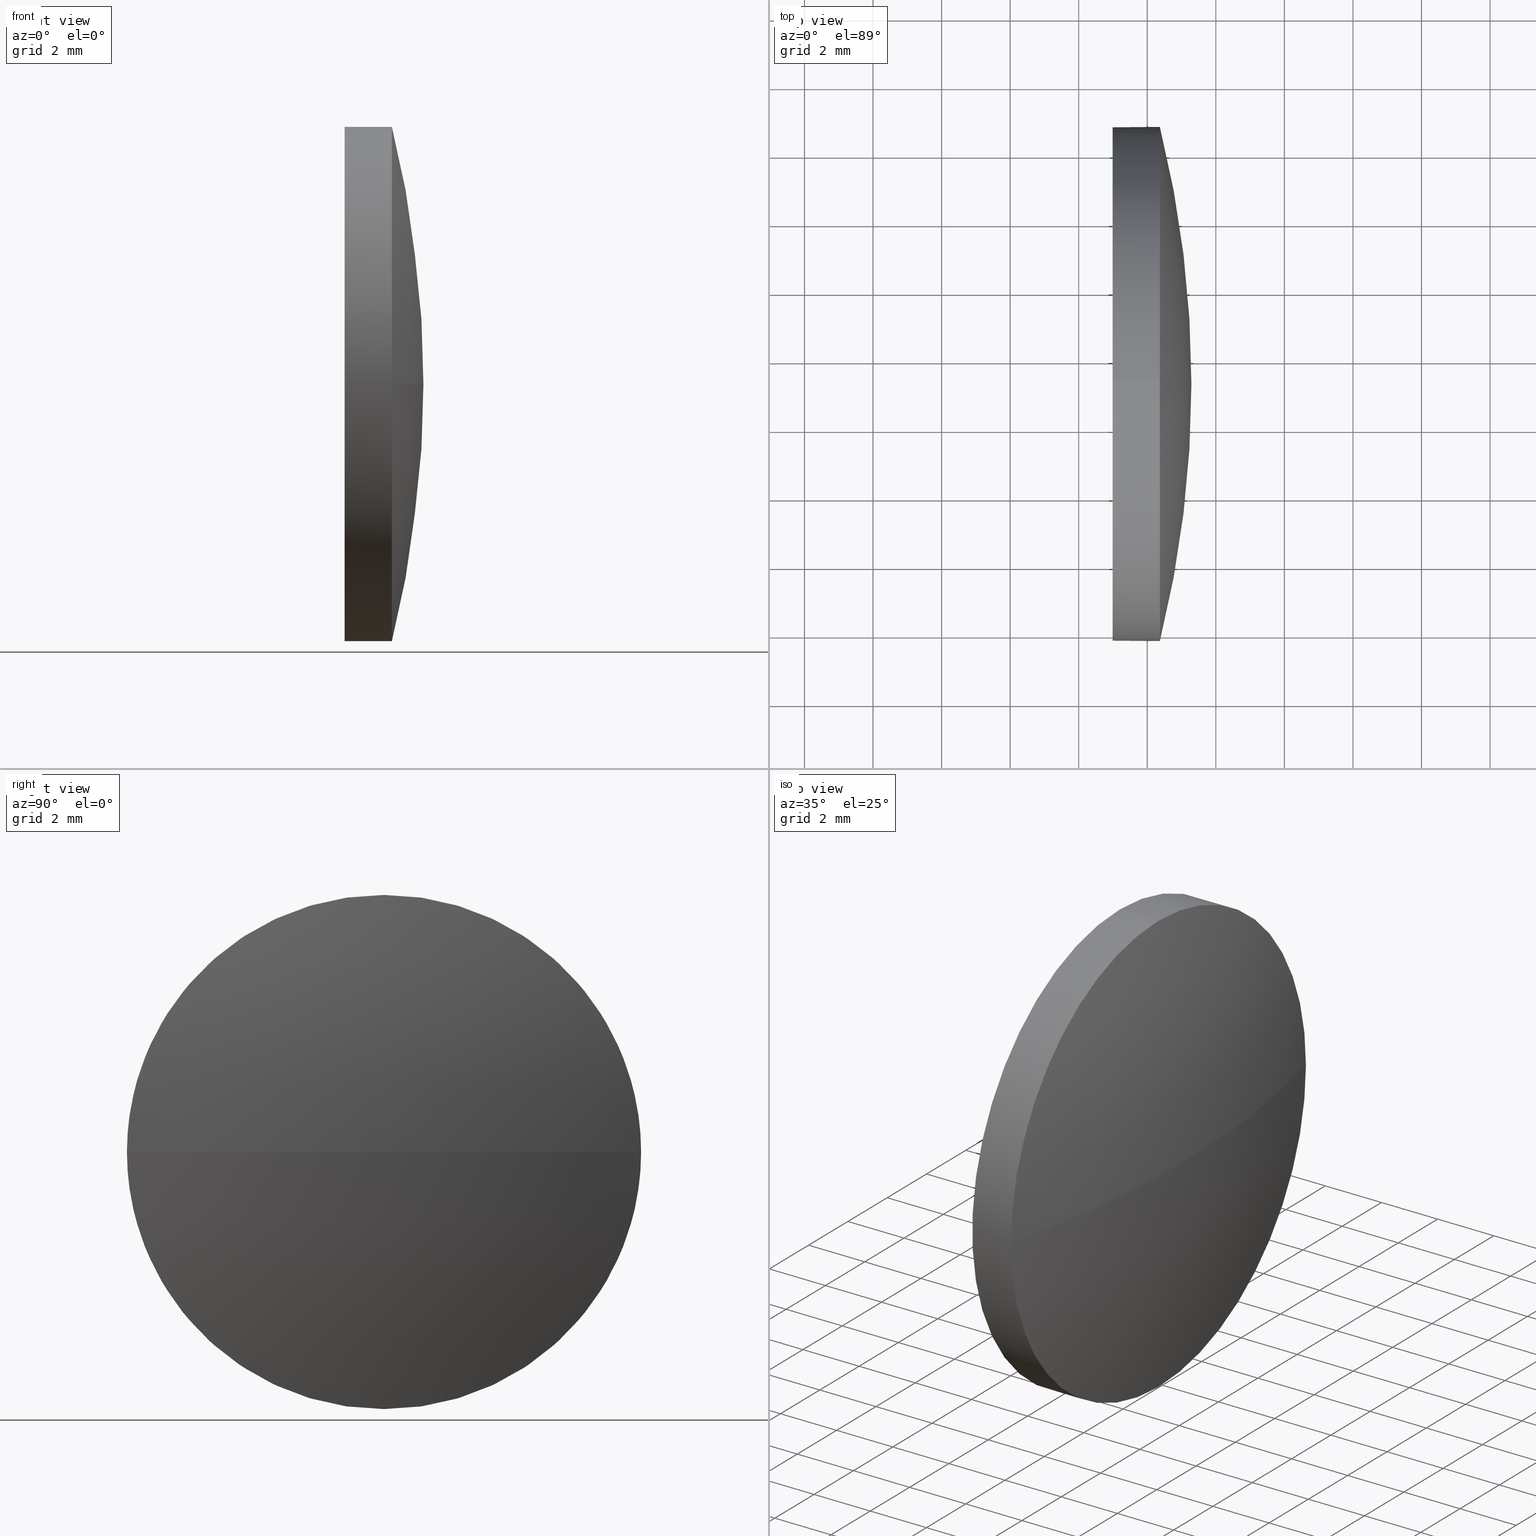
[diagram: canonical four-view strip — front | top / right | iso, engineering-drawing reading convention]
A machine part, canonical four-view strip (front | top / right | iso — engineering-drawing reading convention). The complete STEP part file that produces these views, byte-faithful:
ISO-10303-21;
HEADER;
FILE_DESCRIPTION (( 'STEP AP214' ),
    '1' );
FILE_NAME ('100110.STEP',
    '2019-05-14T01:37:15',
    ( '' ),
    ( '' ),
    'SwSTEP 2.0',
    'SolidWorks 2016',
    '' );
FILE_SCHEMA (( 'AUTOMOTIVE_DESIGN' ));
ENDSEC;

DATA;
#1 = EDGE_LOOP ( 'NONE', ( #184, #165, #14, #60, #132 ) ) ;
#2 = CARTESIAN_POINT ( 'NONE',  ( 576.6614697419953500, 147.2765599219413800, 0.0000000000000000000 ) ) ;
#3 = CARTESIAN_POINT ( 'NONE',  ( 580.3681567995189400, 147.2765599219413800, 0.0000000000000000000 ) ) ;
#4 = MECHANICAL_DESIGN_GEOMETRIC_PRESENTATION_REPRESENTATION (  '', ( #52 ), #121 ) ;
#5 = DIRECTION ( 'NONE',  ( 1.000000000000000000, 0.0000000000000000000, 0.0000000000000000000 ) ) ;
#6 = LINE ( 'NONE', #182, #33 ) ;
#7 = EDGE_CURVE ( 'NONE', #23, #117, #101, .T. ) ;
#8 = CIRCLE ( 'NONE', #68, 31.03065217391332100 ) ;
#9 = AXIS2_PLACEMENT_3D ( 'NONE', #72, #146, #147 ) ;
#10 =( NAMED_UNIT ( * ) PLANE_ANGLE_UNIT ( ) SI_UNIT ( $, .RADIAN. ) );
#11 = UNCERTAINTY_MEASURE_WITH_UNIT (LENGTH_MEASURE( 1.000000000000000100E-005 ), #105, 'distance_accuracy_value', 'NONE');
#12 = AXIS2_PLACEMENT_3D ( 'NONE', #2, #20, #53 ) ;
#13 = EDGE_LOOP ( 'NONE', ( #62, #134 ) ) ;
#14 = ORIENTED_EDGE ( 'NONE', *, *, #97, .T. ) ;
#15 = EDGE_CURVE ( 'NONE', #160, #120, #89, .T. ) ;
#16 = DIRECTION ( 'NONE',  ( -1.000000000000000000, -0.0000000000000000000, -0.0000000000000000000 ) ) ;
#17 = PRESENTATION_LAYER_ASSIGNMENT (  '', '', ( #52 ) ) ;
#18 = COLOUR_RGB ( '',1.000000000000000000, 1.000000000000000000, 1.000000000000000000 ) ;
#19 = EDGE_LOOP ( 'NONE', ( #32, #93, #127, #66 ) ) ;
#20 = DIRECTION ( 'NONE',  ( -1.000000000000000000, -0.0000000000000000000, -0.0000000000000000000 ) ) ;
#21 = CARTESIAN_POINT ( 'NONE',  ( 578.9881567995189500, 147.2765599219413800, -7.500000000000007100 ) ) ;
#22 = DIRECTION ( 'NONE',  ( 0.0000000000000000000, 0.0000000000000000000, 1.000000000000000000 ) ) ;
#23 = VERTEX_POINT ( 'NONE', #64 ) ;
#24 = CIRCLE ( 'NONE', #9, 31.03065217391327800 ) ;
#25 = ORIENTED_EDGE ( 'NONE', *, *, #26, .T. ) ;
#26 = EDGE_CURVE ( 'NONE', #183, #160, #75, .T. ) ;
#27 = SURFACE_STYLE_USAGE ( .BOTH. , #98 ) ;
#28 = CIRCLE ( 'NONE', #185, 7.500000000000007100 ) ;
#29 = PRODUCT_CONTEXT ( 'NONE', #99, 'mechanical' ) ;
#30 = PRESENTATION_LAYER_ASSIGNMENT (  '', '', ( #170 ) ) ;
#31 = PRODUCT_DEFINITION ( 'δ֪', '', #42, #162 ) ;
#32 = ORIENTED_EDGE ( 'NONE', *, *, #112, .F. ) ;
#33 = VECTOR ( 'NONE', #69, 1000.000000000000000 ) ;
#34 = CARTESIAN_POINT ( 'NONE',  ( 581.2881567995189000, 147.2765599219415500, 0.0000000000000000000 ) ) ;
#35 = SHAPE_DEFINITION_REPRESENTATION ( #77, #186 ) ;
#36 = CARTESIAN_POINT ( 'NONE',  ( 580.3681567995189400, 147.2765599219413800, 7.500000000000007100 ) ) ;
#37 = ADVANCED_FACE ( 'NONE', ( #51 ), #65, .T. ) ;
#38 = CYLINDRICAL_SURFACE ( 'NONE', #55, 7.500000000000007100 ) ;
#39 = CARTESIAN_POINT ( 'NONE',  ( 580.3681567995189400, 154.7765599219414700, 9.184850993605047400E-016 ) ) ;
#40 = CARTESIAN_POINT ( 'NONE',  ( 580.3681567995189400, 147.2765599219413800, -7.500000000000007100 ) ) ;
#41 = DIRECTION ( 'NONE',  ( 0.0000000000000000000, 0.0000000000000000000, 1.000000000000000000 ) ) ;
#42 = PRODUCT_DEFINITION_FORMATION_WITH_SPECIFIED_SOURCE ( '�κ�', '', #92, .NOT_KNOWN. ) ;
#43 = EDGE_CURVE ( 'NONE', #120, #144, #78, .T. ) ;
#44 = LINE ( 'NONE', #95, #126 ) ;
#45 = AXIS2_PLACEMENT_3D ( 'NONE', #48, #67, #46 ) ;
#46 = DIRECTION ( 'NONE',  ( 0.0000000000000000000, 0.0000000000000000000, 1.000000000000000000 ) ) ;
#47 = AXIS2_PLACEMENT_3D ( 'NONE', #181, #5, #141 ) ;
#48 = CARTESIAN_POINT ( 'NONE',  ( 580.3681567995189400, 147.2765599219413800, 0.0000000000000000000 ) ) ;
#49 = ORIENTED_EDGE ( 'NONE', *, *, #112, .T. ) ;
#50 = DIRECTION ( 'NONE',  ( 0.0000000000000000000, 0.0000000000000000000, 1.000000000000000000 ) ) ;
#51 = FACE_OUTER_BOUND ( 'NONE', #96, .T. ) ;
#52 = STYLED_ITEM ( 'NONE', ( #86 ), #161 ) ;
#53 = DIRECTION ( 'NONE',  ( 0.0000000000000000000, 0.0000000000000000000, 1.000000000000000000 ) ) ;
#54 = CARTESIAN_POINT ( 'NONE',  ( 578.9881567995189500, 147.2765599219413800, 0.0000000000000000000 ) ) ;
#55 = AXIS2_PLACEMENT_3D ( 'NONE', #158, #177, #143 ) ;
#56 = DIRECTION ( 'NONE',  ( 0.0000000000000000000, 0.0000000000000000000, 1.000000000000000000 ) ) ;
#57 = CARTESIAN_POINT ( 'NONE',  ( 0.0000000000000000000, 0.0000000000000000000, 0.0000000000000000000 ) ) ;
#58 = DIRECTION ( 'NONE',  ( 1.000000000000000000, 0.0000000000000000000, 0.0000000000000000000 ) ) ;
#59 = FILL_AREA_STYLE ('',( #150 ) ) ;
#60 = ORIENTED_EDGE ( 'NONE', *, *, #172, .T. ) ;
#61 =( GEOMETRIC_REPRESENTATION_CONTEXT ( 3 ) GLOBAL_UNCERTAINTY_ASSIGNED_CONTEXT ( ( #74 ) ) GLOBAL_UNIT_ASSIGNED_CONTEXT ( ( #167, #166, #135 ) ) REPRESENTATION_CONTEXT ( 'NONE', 'WORKASPACE' ) );
#62 = ORIENTED_EDGE ( 'NONE', *, *, #7, .T. ) ;
#63 = DIRECTION ( 'NONE',  ( 0.0000000000000000000, 0.0000000000000000000, 1.000000000000000000 ) ) ;
#64 = CARTESIAN_POINT ( 'NONE',  ( 578.9881567995189500, 147.2765599219413800, 7.500000000000007100 ) ) ;
#65 = SPHERICAL_SURFACE ( 'NONE', #164, 31.03065217391328200 ) ;
#66 = ORIENTED_EDGE ( 'NONE', *, *, #15, .F. ) ;
#67 = DIRECTION ( 'NONE',  ( -1.000000000000000000, -0.0000000000000000000, -0.0000000000000000000 ) ) ;
#68 = AXIS2_PLACEMENT_3D ( 'NONE', #131, #148, #130 ) ;
#69 = DIRECTION ( 'NONE',  ( -1.000000000000000000, -0.0000000000000000000, -0.0000000000000000000 ) ) ;
#70 = ORIENTED_EDGE ( 'NONE', *, *, #7, .F. ) ;
#71 = CARTESIAN_POINT ( 'NONE',  ( 550.2575046256056300, 147.2765599219415500, 0.0000000000000000000 ) ) ;
#72 = CARTESIAN_POINT ( 'NONE',  ( 550.2575046256056300, 147.2765599219415500, 0.0000000000000000000 ) ) ;
#73 = EDGE_CURVE ( 'NONE', #113, #144, #8, .T. ) ;
#74 = UNCERTAINTY_MEASURE_WITH_UNIT (LENGTH_MEASURE( 1.000000000000000100E-005 ), #167, 'distance_accuracy_value', 'NONE');
#75 = CIRCLE ( 'NONE', #108, 7.500000000000007100 ) ;
#76 =( NAMED_UNIT ( * ) SI_UNIT ( $, .STERADIAN. ) SOLID_ANGLE_UNIT ( ) );
#77 = PRODUCT_DEFINITION_SHAPE ( 'NONE', 'NONE',  #31 ) ;
#78 = CIRCLE ( 'NONE', #152, 7.500000000000007100 ) ;
#79 = EDGE_LOOP ( 'NONE', ( #175, #100, #70, #169, #25 ) ) ;
#80 = DIRECTION ( 'NONE',  ( 0.0000000000000000000, 0.0000000000000000000, 1.000000000000000000 ) ) ;
#81 = DIRECTION ( 'NONE',  ( 0.0000000000000000000, 0.0000000000000000000, 1.000000000000000000 ) ) ;
#82 =( NAMED_UNIT ( * ) SI_UNIT ( $, .STERADIAN. ) SOLID_ANGLE_UNIT ( ) );
#83 = DIRECTION ( 'NONE',  ( 0.0000000000000000000, -1.000000000000000000, 0.0000000000000000000 ) ) ;
#84 = SURFACE_STYLE_USAGE ( .BOTH. , #107 ) ;
#85 = FACE_OUTER_BOUND ( 'NONE', #79, .T. ) ;
#86 = PRESENTATION_STYLE_ASSIGNMENT (( #84 ) ) ;
#87 = APPLICATION_CONTEXT ( 'automotive_design' ) ;
#88 = AXIS2_PLACEMENT_3D ( 'NONE', #71, #41, #83 ) ;
#89 = CIRCLE ( 'NONE', #45, 7.500000000000007100 ) ;
#90 = ORIENTED_EDGE ( 'NONE', *, *, #26, .F. ) ;
#91 = DIRECTION ( 'NONE',  ( -1.000000000000000000, -0.0000000000000000000, -0.0000000000000000000 ) ) ;
#92 = PRODUCT ( '100110', '100110', '', ( #29 ) ) ;
#93 = ORIENTED_EDGE ( 'NONE', *, *, #73, .T. ) ;
#94 =( NAMED_UNIT ( * ) PLANE_ANGLE_UNIT ( ) SI_UNIT ( $, .RADIAN. ) );
#95 = CARTESIAN_POINT ( 'NONE',  ( 576.6614697419953500, 147.2765599219413800, 7.500000000000007100 ) ) ;
#96 = EDGE_LOOP ( 'NONE', ( #139, #49, #90, #133 ) ) ;
#97 = EDGE_CURVE ( 'NONE', #144, #183, #28, .T. ) ;
#98 = SURFACE_SIDE_STYLE ('',( #138 ) ) ;
#99 = APPLICATION_CONTEXT ( 'automotive_design' ) ;
#100 = ORIENTED_EDGE ( 'NONE', *, *, #151, .T. ) ;
#101 = CIRCLE ( 'NONE', #137, 7.500000000000007100 ) ;
#102 = CARTESIAN_POINT ( 'NONE',  ( 578.9881567995189500, 147.2765599219413800, 0.0000000000000000000 ) ) ;
#103 = CARTESIAN_POINT ( 'NONE',  ( 580.3681567995189400, 147.2765599219413800, 0.0000000000000000000 ) ) ;
#104 = DIRECTION ( 'NONE',  ( -1.000000000000000000, -0.0000000000000000000, -0.0000000000000000000 ) ) ;
#105 =( LENGTH_UNIT ( ) NAMED_UNIT ( * ) SI_UNIT ( .MILLI., .METRE. ) );
#106 = PRESENTATION_STYLE_ASSIGNMENT (( #27 ) ) ;
#107 = SURFACE_SIDE_STYLE ('',( #119 ) ) ;
#108 = AXIS2_PLACEMENT_3D ( 'NONE', #103, #16, #80 ) ;
#109 = FILL_AREA_STYLE_COLOUR ( '', #153 ) ;
#110 = CARTESIAN_POINT ( 'NONE',  ( 580.3681567995189400, 139.7765599219414700, 0.0000000000000000000 ) ) ;
#111 = CYLINDRICAL_SURFACE ( 'NONE', #12, 7.500000000000007100 ) ;
#112 = EDGE_CURVE ( 'NONE', #113, #160, #24, .T. ) ;
#113 = VERTEX_POINT ( 'NONE', #34 ) ;
#114 = DIRECTION ( 'NONE',  ( -1.000000000000000000, -0.0000000000000000000, -0.0000000000000000000 ) ) ;
#115 = ADVANCED_FACE ( 'NONE', ( #155 ), #111, .T. ) ;
#116 = PRODUCT_RELATED_PRODUCT_CATEGORY ( 'part', '', ( #92 ) ) ;
#117 = VERTEX_POINT ( 'NONE', #21 ) ;
#118 = AXIS2_PLACEMENT_3D ( 'NONE', #57, #56, #58 ) ;
#119 = SURFACE_STYLE_FILL_AREA ( #179 ) ;
#120 = VERTEX_POINT ( 'NONE', #40 ) ;
#121 =( GEOMETRIC_REPRESENTATION_CONTEXT ( 3 ) GLOBAL_UNCERTAINTY_ASSIGNED_CONTEXT ( ( #11 ) ) GLOBAL_UNIT_ASSIGNED_CONTEXT ( ( #105, #94, #82 ) ) REPRESENTATION_CONTEXT ( 'NONE', 'WORKASPACE' ) );
#122 = PLANE ( 'NONE',  #47 ) ;
#123 = APPLICATION_PROTOCOL_DEFINITION ( 'draft international standard', 'automotive_design', 1998, #87 ) ;
#124 = SPHERICAL_SURFACE ( 'NONE', #88, 31.03065217391328200 ) ;
#125 = UNCERTAINTY_MEASURE_WITH_UNIT (LENGTH_MEASURE( 1.000000000000000100E-005 ), #159, 'distance_accuracy_value', 'NONE');
#126 = VECTOR ( 'NONE', #129, 1000.000000000000000 ) ;
#127 = ORIENTED_EDGE ( 'NONE', *, *, #43, .F. ) ;
#128 = ADVANCED_FACE ( 'NONE', ( #174 ), #124, .T. ) ;
#129 = DIRECTION ( 'NONE',  ( -1.000000000000000000, -0.0000000000000000000, -0.0000000000000000000 ) ) ;
#130 = DIRECTION ( 'NONE',  ( -1.000000000000000000, 0.0000000000000000000, 0.0000000000000000000 ) ) ;
#131 = CARTESIAN_POINT ( 'NONE',  ( 550.2575046256056300, 147.2765599219415500, 0.0000000000000000000 ) ) ;
#132 = ORIENTED_EDGE ( 'NONE', *, *, #178, .F. ) ;
#133 = ORIENTED_EDGE ( 'NONE', *, *, #97, .F. ) ;
#134 = ORIENTED_EDGE ( 'NONE', *, *, #178, .T. ) ;
#135 =( NAMED_UNIT ( * ) SI_UNIT ( $, .STERADIAN. ) SOLID_ANGLE_UNIT ( ) );
#136 = DIRECTION ( 'NONE',  ( 0.0000000000000000000, 0.0000000000000000000, 1.000000000000000000 ) ) ;
#137 = AXIS2_PLACEMENT_3D ( 'NONE', #102, #104, #63 ) ;
#138 = SURFACE_STYLE_FILL_AREA ( #59 ) ;
#139 = ORIENTED_EDGE ( 'NONE', *, *, #73, .F. ) ;
#140 =( GEOMETRIC_REPRESENTATION_CONTEXT ( 3 ) GLOBAL_UNCERTAINTY_ASSIGNED_CONTEXT ( ( #125 ) ) GLOBAL_UNIT_ASSIGNED_CONTEXT ( ( #159, #10, #76 ) ) REPRESENTATION_CONTEXT ( 'NONE', 'WORKASPACE' ) );
#141 = DIRECTION ( 'NONE',  ( 0.0000000000000000000, 0.0000000000000000000, -1.000000000000000000 ) ) ;
#142 = AXIS2_PLACEMENT_3D ( 'NONE', #54, #114, #136 ) ;
#143 = DIRECTION ( 'NONE',  ( 0.0000000000000000000, 0.0000000000000000000, 1.000000000000000000 ) ) ;
#144 = VERTEX_POINT ( 'NONE', #110 ) ;
#145 = ADVANCED_FACE ( 'NONE', ( #168 ), #122, .F. ) ;
#146 = DIRECTION ( 'NONE',  ( 0.0000000000000000000, -1.224646799147353200E-016, 1.000000000000000000 ) ) ;
#147 = DIRECTION ( 'NONE',  ( 0.0000000000000000000, -1.000000000000000000, -1.224646799147353500E-016 ) ) ;
#148 = DIRECTION ( 'NONE',  ( 0.0000000000000000000, 0.0000000000000000000, -1.000000000000000000 ) ) ;
#149 = CIRCLE ( 'NONE', #142, 7.500000000000007100 ) ;
#150 = FILL_AREA_STYLE_COLOUR ( '', #18 ) ;
#151 = EDGE_CURVE ( 'NONE', #120, #117, #6, .T. ) ;
#152 = AXIS2_PLACEMENT_3D ( 'NONE', #173, #91, #50 ) ;
#153 = COLOUR_RGB ( '',1.000000000000000000, 1.000000000000000000, 1.000000000000000000 ) ;
#154 = APPLICATION_PROTOCOL_DEFINITION ( 'draft international standard', 'automotive_design', 1998, #99 ) ;
#155 = FACE_OUTER_BOUND ( 'NONE', #1, .T. ) ;
#156 = MECHANICAL_DESIGN_GEOMETRIC_PRESENTATION_REPRESENTATION (  '', ( #170 ), #61 ) ;
#157 = CARTESIAN_POINT ( 'NONE',  ( 550.2575046256056300, 147.2765599219415500, 0.0000000000000000000 ) ) ;
#158 = CARTESIAN_POINT ( 'NONE',  ( 576.6614697419953500, 147.2765599219413800, 0.0000000000000000000 ) ) ;
#159 =( LENGTH_UNIT ( ) NAMED_UNIT ( * ) SI_UNIT ( .MILLI., .METRE. ) );
#160 = VERTEX_POINT ( 'NONE', #39 ) ;
#161 = MANIFOLD_SOLID_BREP ( '��ת1', #171 ) ;
#162 = PRODUCT_DEFINITION_CONTEXT ( 'detailed design', #87, 'design' ) ;
#163 = ADVANCED_FACE ( 'NONE', ( #85 ), #38, .T. ) ;
#164 = AXIS2_PLACEMENT_3D ( 'NONE', #157, #81, #176 ) ;
#165 = ORIENTED_EDGE ( 'NONE', *, *, #43, .T. ) ;
#166 =( NAMED_UNIT ( * ) PLANE_ANGLE_UNIT ( ) SI_UNIT ( $, .RADIAN. ) );
#167 =( LENGTH_UNIT ( ) NAMED_UNIT ( * ) SI_UNIT ( .MILLI., .METRE. ) );
#168 = FACE_OUTER_BOUND ( 'NONE', #13, .T. ) ;
#169 = ORIENTED_EDGE ( 'NONE', *, *, #172, .F. ) ;
#170 = STYLED_ITEM ( 'NONE', ( #106 ), #186 ) ;
#171 = CLOSED_SHELL ( 'NONE', ( #163, #37, #128, #115, #145 ) ) ;
#172 = EDGE_CURVE ( 'NONE', #183, #23, #44, .T. ) ;
#173 = CARTESIAN_POINT ( 'NONE',  ( 580.3681567995189400, 147.2765599219413800, 0.0000000000000000000 ) ) ;
#174 = FACE_OUTER_BOUND ( 'NONE', #19, .T. ) ;
#175 = ORIENTED_EDGE ( 'NONE', *, *, #15, .T. ) ;
#176 = DIRECTION ( 'NONE',  ( 0.0000000000000000000, -1.000000000000000000, 0.0000000000000000000 ) ) ;
#177 = DIRECTION ( 'NONE',  ( -1.000000000000000000, -0.0000000000000000000, -0.0000000000000000000 ) ) ;
#178 = EDGE_CURVE ( 'NONE', #117, #23, #149, .T. ) ;
#179 = FILL_AREA_STYLE ('',( #109 ) ) ;
#180 = DIRECTION ( 'NONE',  ( -1.000000000000000000, -0.0000000000000000000, -0.0000000000000000000 ) ) ;
#181 = CARTESIAN_POINT ( 'NONE',  ( 578.9881567995189500, 147.2765599219413800, 0.0000000000000000000 ) ) ;
#182 = CARTESIAN_POINT ( 'NONE',  ( 576.6614697419953500, 147.2765599219413800, -7.500000000000007100 ) ) ;
#183 = VERTEX_POINT ( 'NONE', #36 ) ;
#184 = ORIENTED_EDGE ( 'NONE', *, *, #151, .F. ) ;
#185 = AXIS2_PLACEMENT_3D ( 'NONE', #3, #180, #22 ) ;
#186 = ADVANCED_BREP_SHAPE_REPRESENTATION ( '100110', ( #161, #118 ), #140 ) ;
ENDSEC;
END-ISO-10303-21;
